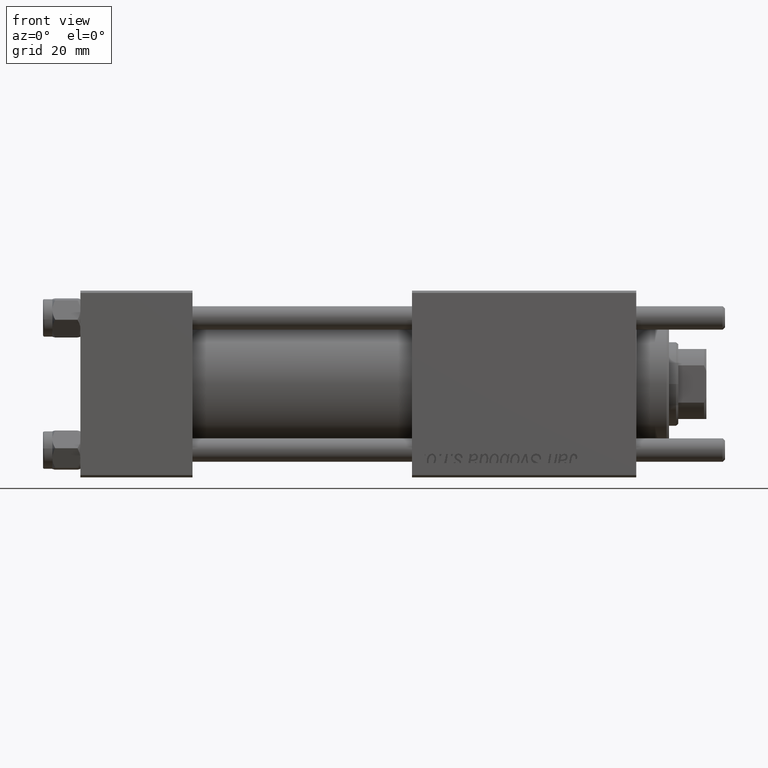
[diagram: clean part render]
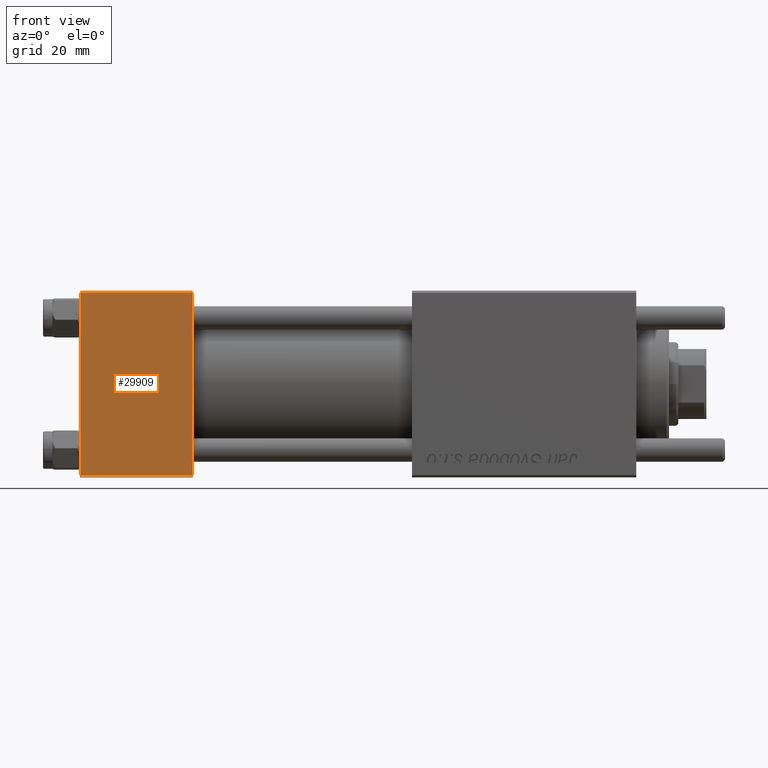
[diagram: same view with one face highlighted and labeled with its STEP entity id]
A machine part, front view. The second image highlights one B-rep face of the part: STEP entity #29909.
In plain terms, the highlighted planar face has unit normal (0, 1, 0).
Its self-contained STEP definition (entity closure, byte-faithful):
#4491 = EDGE_CURVE ( 'NONE', #28061, #6088, #54922, .T. ) ;
#6088 = VERTEX_POINT ( 'NONE', #8450 ) ;
#6160 = VERTEX_POINT ( 'NONE', #19869 ) ;
#8450 = CARTESIAN_POINT ( 'NONE',  ( 24.00000000000000000, -20.00000000000000000, -19.49999999999999645 ) ) ;
#8589 = CARTESIAN_POINT ( 'NONE',  ( 24.00000000000000000, -20.00000000000000355, 19.49999999999998224 ) ) ;
#10192 = ORIENTED_EDGE ( 'NONE', *, *, #4491, .T. ) ;
#10226 = DIRECTION ( 'NONE',  ( -1.000000000000000000, 0.000000000000000000, 0.000000000000000000 ) ) ;
#12255 = CARTESIAN_POINT ( 'NONE',  ( 0.000000000000000000, -20.00000000000000355, 19.99999999999998934 ) ) ;
#13960 = LINE ( 'NONE', #8589, #38832 ) ;
#16663 = ORIENTED_EDGE ( 'NONE', *, *, #45242, .T. ) ;
#18383 = FACE_OUTER_BOUND ( 'NONE', #18852, .T. ) ;
#18852 = EDGE_LOOP ( 'NONE', ( #50774, #10192, #47095, #16663 ) ) ;
#18997 = CARTESIAN_POINT ( 'NONE',  ( 24.00000000000000000, -20.00000000000000355, 19.99999999999998934 ) ) ;
#19869 = CARTESIAN_POINT ( 'NONE',  ( 24.00000000000000000, -20.00000000000000355, 19.49999999999998224 ) ) ;
#22685 = DIRECTION ( 'NONE',  ( 0.000000000000000000, -8.673617379884036705E-17, 1.000000000000000000 ) ) ;
#22836 = CARTESIAN_POINT ( 'NONE',  ( 0.000000000000000000, -20.00000000000000355, 19.49999999999998224 ) ) ;
#23245 = DIRECTION ( 'NONE',  ( -0.000000000000000000, 1.000000000000000000, 8.673617379884036705E-17 ) ) ;
#23383 = VECTOR ( 'NONE', #36865, 1000.000000000000000 ) ;
#27600 = DIRECTION ( 'NONE',  ( 0.000000000000000000, 8.673617379884036705E-17, -1.000000000000000000 ) ) ;
#27872 = LINE ( 'NONE', #18997, #49489 ) ;
#28061 = VERTEX_POINT ( 'NONE', #39641 ) ;
#29909 = ADVANCED_FACE ( 'NONE', ( #18383 ), #43915, .F. ) ;
#34710 = VECTOR ( 'NONE', #35959, 1000.000000000000000 ) ;
#35959 = DIRECTION ( 'NONE',  ( 0.000000000000000000, 8.673617379884036705E-17, -1.000000000000000000 ) ) ;
#36865 = DIRECTION ( 'NONE',  ( 1.000000000000000000, 0.000000000000000000, 0.000000000000000000 ) ) ;
#38358 = EDGE_CURVE ( 'NONE', #6160, #6088, #27872, .T. ) ;
#38832 = VECTOR ( 'NONE', #10226, 1000.000000000000000 ) ;
#39641 = CARTESIAN_POINT ( 'NONE',  ( 0.000000000000000000, -20.00000000000000000, -19.49999999999999645 ) ) ;
#42021 = CARTESIAN_POINT ( 'NONE',  ( 24.00000000000000000, -20.00000000000000000, -19.49999999999999645 ) ) ;
#43915 = PLANE ( 'NONE',  #48476 ) ;
#45242 = EDGE_CURVE ( 'NONE', #6160, #52757, #13960, .T. ) ;
#47095 = ORIENTED_EDGE ( 'NONE', *, *, #38358, .F. ) ;
#48284 = LINE ( 'NONE', #12255, #34710 ) ;
#48476 = AXIS2_PLACEMENT_3D ( 'NONE', #49322, #23245, #22685 ) ;
#49307 = EDGE_CURVE ( 'NONE', #52757, #28061, #48284, .T. ) ;
#49322 = CARTESIAN_POINT ( 'NONE',  ( 24.00000000000000000, -20.00000000000000355, 19.99999999999998934 ) ) ;
#49489 = VECTOR ( 'NONE', #27600, 1000.000000000000000 ) ;
#50774 = ORIENTED_EDGE ( 'NONE', *, *, #49307, .T. ) ;
#52757 = VERTEX_POINT ( 'NONE', #22836 ) ;
#54922 = LINE ( 'NONE', #42021, #23383 ) ;